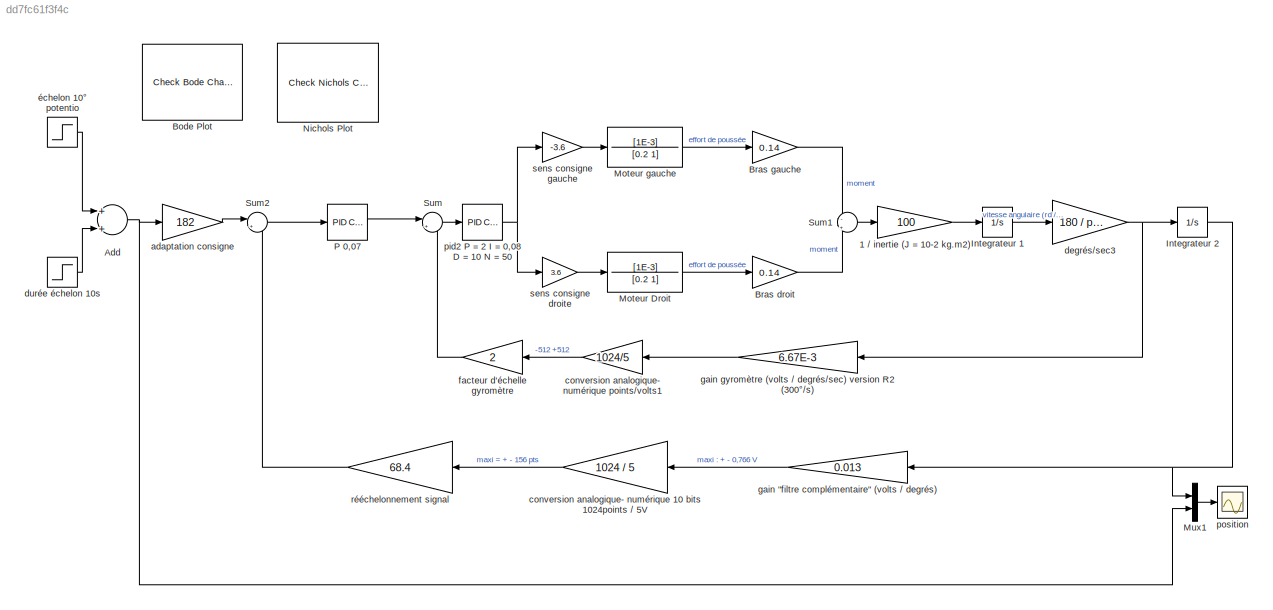
MODEL slx_dd7fc61f3f4c
KIND model
BLOCK [Gain] 1 // inertie (J = 10-2 kg.m2)
  Gain = 100
  OutDataTypeStr = Inherit: Inherit via internal rule
  ParamDataTypeStr = Inherit: Inherit via internal rule
  SaturateOnIntegerOverflow = off
BLOCK [Sum] Add
  InputSameDT = off
  OutDataTypeStr = Inherit: Inherit via internal rule
  Ports = [2, 1]
  SaturateOnIntegerOverflow = off
BLOCK [Reference] Bode Plot  REF=slctrlblks/Model Verification/Check Bode 
Characteristics
  EnableLowerBound = off
  EnableUpperBound = off
  FrequencyUnits = rad/s
  InstantiateOnLoad = on
  LaunchViewOnOpen = on
  LinearizationIOs = {'/Sum2', 1, 'in', 'on', '';'/rééchelonnement signal', 1, 'out', 'on', ''}
  LinearizeAt = SnapshotTimes
  LowerBoundFrequencies = []
  LowerBoundMagnitudes = []
  MagnitudeUnits = dB
  OpenViewOnLoad = on
  PhaseUnits = deg
  Ports = []
  PreWarpFreq = 10
  RateConversionMethod = zoh
  SampleTime = auto
  SaveName = sys
  SaveToWorkspace = off
  SnapshotTimes = [0]
  SourceBlock = slctrlblks/Model Verification/Check Bode \nCharacteristics
  SourceType = Checks_Bode
  TimeUnits = seconds
  TriggerType = rising
  UpperBoundFrequencies = []
  UpperBoundMagnitudes = []
  UseBusSignalLabels = off
  UseExactDelayModel = off
  UseFullBlockNameLabels = off
  ViewDlgPos = [1323 39 510 390]
  ZeroCross = on
  enabled = on
  export = off
  stopWhenAssertionFail = off
BLOCK [Gain] Bras droit
  Gain = 0.14
  OutDataTypeStr = Inherit: Inherit via internal rule
  ParamDataTypeStr = Inherit: Inherit via internal rule
  SaturateOnIntegerOverflow = off
BLOCK [Gain] Bras gauche
  Gain = 0.14
  OutDataTypeStr = Inherit: Inherit via internal rule
  ParamDataTypeStr = Inherit: Inherit via internal rule
  SaturateOnIntegerOverflow = off
BLOCK [Integrator] Integrateur 1
  Ports = [1, 1]
BLOCK [Integrator] Integrateur 2
  Ports = [1, 1]
BLOCK [TransferFcn] Moteur Droit
  Denominator = [0.2 1]
  Numerator = [1E-3]
BLOCK [TransferFcn] Moteur gauche
  Denominator = [0.2 1]
  Numerator = [1E-3]
BLOCK [Mux] Mux1
  DisplayOption = bar
  Inputs = 2
  Ports = [2, 1]
BLOCK [Reference] Nichols Plot  REF=slctrlblks/Model Verification/Check Nichols
Characteristics
  CLPeakGain = []
  EnableCLPeakGain = off
  EnableGainPhaseBound = off
  EnableMargins = off
  FeedbackSign = -1
  FrequencyUnits = rad/s
  GainMargin = []
  GainPhaseBoundType = {'upper'}
  InstantiateOnLoad = on
  LaunchViewOnOpen = on
  LinearizationIOs = {'/Sum2', 1, 'in', 'on', '';'/rééchelonnement signal', 1, 'out', 'on', ''}
  LinearizeAt = SnapshotTimes
  MagnitudeUnits = dB
  OLGains = []
  OLPhases = []
  OpenViewOnLoad = on
  PhaseMargin = []
  PhaseUnits = deg
  Ports = []
  PreWarpFreq = 10
  RateConversionMethod = zoh
  SampleTime = auto
  SaveName = sys
  SaveToWorkspace = off
  SnapshotTimes = [0]
  SourceBlock = slctrlblks/Model Verification/Check Nichols\nCharacteristics
  SourceType = Checks_Nichols
  TimeUnits = seconds
  TriggerType = rising
  UseBusSignalLabels = off
  UseExactDelayModel = off
  UseFullBlockNameLabels = off
  ViewDlgPos = [1322 516 510 390]
  ZeroCross = on
  enabled = on
  export = off
  stopWhenAssertionFail = off
BLOCK [Reference] P 0,07  REF=simulink/Continuous/PID Controller
  AntiWindupMode = none
  Controller = P
  D = 0.0013
  DOutDataTypeStr = Inherit: Inherit via internal rule
  DOutMax = []
  DOutMin = []
  DParamDataTypeStr = Inherit: Inherit via internal rule
  DParamMax = []
  DParamMin = []
  ExternalReset = none
  FilterContinuousStateAttributes = ''
  FilterMethod = Forward Euler
  FilterOutDataTypeStr = Inherit: Inherit via internal rule
  FilterOutMax = []
  FilterOutMin = []
  FilterRTWStateStorageClass = Auto
  FilterStateMustResolveToSignalObject = off
  Form = Parallel
  I = 5
  IOutDataTypeStr = Inherit: Inherit via internal rule
  IOutMax = []
  IOutMin = []
  IParamDataTypeStr = Inherit: Inherit via internal rule
  IParamMax = []
  IParamMin = []
  IgnoreLimit = off
  InitialConditionForFilter = 0
  InitialConditionForIntegrator = 0
  InitialConditionSource = internal
  IntegratorContinuousStateAttributes = ''
  IntegratorMethod = Forward Euler
  IntegratorOutDataTypeStr = Inherit: Inherit via internal rule
  IntegratorOutMax = []
  IntegratorOutMin = []
  IntegratorRTWStateStorageClass = Auto
  IntegratorStateMustResolveToSignalObject = off
  Kb = 1
  KbOutDataTypeStr = Inherit: Inherit via internal rule
  KbOutMax = []
  KbOutMin = []
  KbParamDataTypeStr = Inherit: Inherit via internal rule
  KbParamMax = []
  KbParamMin = []
  Kt = 1
  KtOutDataTypeStr = Inherit: Inherit via internal rule
  KtOutMax = []
  KtOutMin = []
  KtParamDataTypeStr = Inherit: Inherit via internal rule
  KtParamMax = []
  KtParamMin = []
  LimitOutput = off
  LinearizeAsGain = off
  LockScale = off
  LowerSaturationLimit = -inf
  N = 330
  NOutDataTypeStr = Inherit: Inherit via internal rule
  NOutMax = []
  NOutMin = []
  NParamDataTypeStr = Inherit: Inherit via internal rule
  NParamMax = []
  NParamMin = []
  P = 0.07
  POutDataTypeStr = Inherit: Inherit via internal rule
  POutMax = []
  POutMin = []
  PParamDataTypeStr = Inherit: Inherit via internal rule
  PParamMax = []
  PParamMin = []
  Ports = [1, 1]
  RndMeth = Floor
  SampleTime = 1
  SaturateOnIntegerOverflow = off
  SaturationOutDataTypeStr = Inherit: Same as input
  SaturationOutMax = []
  SaturationOutMin = []
  SourceBlock = simulink/Continuous/PID Controller
  SourceType = PID 1dof
  SumAccumDataTypeStr = Inherit: Inherit via internal rule
  SumDAccumDataTypeStr = Inherit: Inherit via internal rule
  SumDOutDataTypeStr = Inherit: Inherit via internal rule
  SumDOutMax = []
  SumDOutMin = []
  SumI1AccumDataTypeStr = Inherit: Inherit via internal rule
  SumI1OutDataTypeStr = Inherit: Inherit via internal rule
  SumI1OutMax = []
  SumI1OutMin = []
  SumI2AccumDataTypeStr = Inherit: Inherit via internal rule
  SumI2OutDataTypeStr = Inherit: Inherit via internal rule
  SumI2OutMax = []
  SumI2OutMin = []
  SumI3AccumDataTypeStr = Inherit: Inherit via internal rule
  SumI3OutDataTypeStr = Inherit: Inherit via internal rule
  SumI3OutMax = []
  SumI3OutMin = []
  SumOutDataTypeStr = Inherit: Inherit via internal rule
  SumOutMax = []
  SumOutMin = []
  TimeDomain = Continuous-time
  TrackingMode = off
  UpperSaturationLimit = inf
  ZeroCross = on
BLOCK [Sum] Sum
  IconShape = round
  InputSameDT = off
  Inputs = |+-
  OutDataTypeStr = Inherit: Inherit via internal rule
  Ports = [2, 1]
  SaturateOnIntegerOverflow = off
BLOCK [Sum] Sum1
  IconShape = round
  InputSameDT = off
  Inputs = -|+
  OutDataTypeStr = Inherit: Inherit via internal rule
  Ports = [2, 1]
  SaturateOnIntegerOverflow = off
BLOCK [Sum] Sum2
  IconShape = round
  InputSameDT = off
  Inputs = |+-
  OutDataTypeStr = Inherit: Inherit via internal rule
  Ports = [2, 1]
  SaturateOnIntegerOverflow = off
BLOCK [Gain] adaptation consigne
  Gain = 182
  OutDataTypeStr = Inherit: Inherit via internal rule
  ParamDataTypeStr = Inherit: Inherit via internal rule
  SaturateOnIntegerOverflow = off
BLOCK [Gain] conversion analogique- numérique 10 bits 1024points // 5V
  Gain = 1024 / 5
  OutDataTypeStr = Inherit: Inherit via internal rule
  ParamDataTypeStr = Inherit: Inherit via internal rule
  SaturateOnIntegerOverflow = off
BLOCK [Gain] conversion analogique- numérique points//volts1
  Gain = 1024/5
  OutDataTypeStr = Inherit: Inherit via internal rule
  ParamDataTypeStr = Inherit: Inherit via internal rule
  SaturateOnIntegerOverflow = off
BLOCK [Gain] degrés//sec3
  Gain = 180 / pi()
  OutDataTypeStr = Inherit: Inherit via internal rule
  ParamDataTypeStr = Inherit: Inherit via internal rule
  SaturateOnIntegerOverflow = off
BLOCK [Step] durée échelon 10s
  After = -10
  SampleTime = 0
  Time = 10
BLOCK [Gain] facteur d'échelle gyromètre
  Gain = 2
  OutDataTypeStr = Inherit: Inherit via internal rule
  ParamDataTypeStr = Inherit: Inherit via internal rule
  SaturateOnIntegerOverflow = off
BLOCK [Gain] gain "filtre complémentaire" (volts // degrés)
  Gain = 0.013
  OutDataTypeStr = Inherit: Inherit via internal rule
  ParamDataTypeStr = Inherit: Inherit via internal rule
  SaturateOnIntegerOverflow = off
BLOCK [Gain] gain gyromètre (volts // degrés//sec) version R2 (300°//s)
  Gain = 6.67E-3
  OutDataTypeStr = Inherit: Inherit via internal rule
  ParamDataTypeStr = Inherit: Inherit via internal rule
  SaturateOnIntegerOverflow = off
BLOCK [Reference] pid2 P = 2 I = 0,08 D = 10 N = 50   REF=simulink/Continuous/PID Controller
  AntiWindupMode = none
  Controller = PID
  D = 10/50
  DOutDataTypeStr = Inherit: Inherit via internal rule
  DOutMax = []
  DOutMin = []
  DParamDataTypeStr = Inherit: Inherit via internal rule
  DParamMax = []
  DParamMin = []
  ExternalReset = none
  FilterContinuousStateAttributes = ''
  FilterMethod = Forward Euler
  FilterOutDataTypeStr = Inherit: Inherit via internal rule
  FilterOutMax = []
  FilterOutMin = []
  FilterRTWStateStorageClass = Auto
  FilterStateMustResolveToSignalObject = off
  Form = Parallel
  I = 0.08
  IOutDataTypeStr = Inherit: Inherit via internal rule
  IOutMax = []
  IOutMin = []
  IParamDataTypeStr = Inherit: Inherit via internal rule
  IParamMax = []
  IParamMin = []
  IgnoreLimit = off
  InitialConditionForFilter = 0
  InitialConditionForIntegrator = 0
  InitialConditionSource = internal
  IntegratorContinuousStateAttributes = ''
  IntegratorMethod = Forward Euler
  IntegratorOutDataTypeStr = Inherit: Inherit via internal rule
  IntegratorOutMax = []
  IntegratorOutMin = []
  IntegratorRTWStateStorageClass = Auto
  IntegratorStateMustResolveToSignalObject = off
  Kb = 1
  KbOutDataTypeStr = Inherit: Inherit via internal rule
  KbOutMax = []
  KbOutMin = []
  KbParamDataTypeStr = Inherit: Inherit via internal rule
  KbParamMax = []
  KbParamMin = []
  Kt = 1
  KtOutDataTypeStr = Inherit: Inherit via internal rule
  KtOutMax = []
  KtOutMin = []
  KtParamDataTypeStr = Inherit: Inherit via internal rule
  KtParamMax = []
  KtParamMin = []
  LimitOutput = off
  LinearizeAsGain = off
  LockScale = off
  LowerSaturationLimit = -inf
  N = 50
  NOutDataTypeStr = Inherit: Inherit via internal rule
  NOutMax = []
  NOutMin = []
  NParamDataTypeStr = Inherit: Inherit via internal rule
  NParamMax = []
  NParamMin = []
  P = 2
  POutDataTypeStr = Inherit: Inherit via internal rule
  POutMax = []
  POutMin = []
  PParamDataTypeStr = Inherit: Inherit via internal rule
  PParamMax = []
  PParamMin = []
  Ports = [1, 1]
  RndMeth = Floor
  SampleTime = 1
  SaturateOnIntegerOverflow = off
  SaturationOutDataTypeStr = Inherit: Same as input
  SaturationOutMax = []
  SaturationOutMin = []
  SourceBlock = simulink/Continuous/PID Controller
  SourceType = PID 1dof
  SumAccumDataTypeStr = Inherit: Inherit via internal rule
  SumDAccumDataTypeStr = Inherit: Inherit via internal rule
  SumDOutDataTypeStr = Inherit: Inherit via internal rule
  SumDOutMax = []
  SumDOutMin = []
  SumI1AccumDataTypeStr = Inherit: Inherit via internal rule
  SumI1OutDataTypeStr = Inherit: Inherit via internal rule
  SumI1OutMax = []
  SumI1OutMin = []
  SumI2AccumDataTypeStr = Inherit: Inherit via internal rule
  SumI2OutDataTypeStr = Inherit: Inherit via internal rule
  SumI2OutMax = []
  SumI2OutMin = []
  SumI3AccumDataTypeStr = Inherit: Inherit via internal rule
  SumI3OutDataTypeStr = Inherit: Inherit via internal rule
  SumI3OutMax = []
  SumI3OutMin = []
  SumOutDataTypeStr = Inherit: Inherit via internal rule
  SumOutMax = []
  SumOutMin = []
  TimeDomain = Continuous-time
  TrackingMode = off
  UpperSaturationLimit = inf
  ZeroCross = on
BLOCK [Scope] position
  DataFormat = StructureWithTime
  Floating = off
  LimitDataPoints = off
  NumInputPorts = 1
  Ports = [1]
  SampleTime = 0
  SaveName = ScopeData1
  ShowLegends = off
  YMax = 10
  YMin = -1
BLOCK [Gain] rééchelonnement signal
  Gain = 68.4
  OutDataTypeStr = Inherit: Inherit via internal rule
  ParamDataTypeStr = Inherit: Inherit via internal rule
  SaturateOnIntegerOverflow = off
BLOCK [Gain] sens consigne droite
  Gain = 3.6
  OutDataTypeStr = Inherit: Inherit via internal rule
  ParamDataTypeStr = Inherit: Inherit via internal rule
  SaturateOnIntegerOverflow = off
BLOCK [Gain] sens consigne gauche
  Gain = -3.6
  OutDataTypeStr = Inherit: Inherit via internal rule
  ParamDataTypeStr = Inherit: Inherit via internal rule
  SaturateOnIntegerOverflow = off
BLOCK [Step] échelon 10° potentio
  After = 10
  SampleTime = 0
  Time = 0
LINE 1 // inertie (J = 10-2 kg.m2):1 -> Integrateur 1:1
NET Add:1 -> Mux1:2, adaptation consigne:1
LINE Bras droit:1 -> Sum1:2
LINE Bras gauche:1 -> Sum1:1
LINE Integrateur 1:1 -> degrés//sec3:1
NET Integrateur 2:1 -> Mux1:1, gain "filtre complémentaire" (volts // degrés):1
LINE Moteur Droit:1 -> Bras droit:1
LINE Moteur gauche:1 -> Bras gauche:1
LINE Mux1:1 -> position:1
LINE P 0,07:1 -> Sum:1
LINE Sum1:1 -> 1 // inertie (J = 10-2 kg.m2):1
LINE Sum2:1 -> P 0,07:1
LINE Sum:1 -> pid2 P = 2 I = 0,08 D = 10 N = 50 :1
LINE adaptation consigne:1 -> Sum2:1
LINE conversion analogique- numérique 10 bits 1024points // 5V:1 -> rééchelonnement signal:1
LINE conversion analogique- numérique points//volts1:1 -> facteur d'échelle gyromètre:1
NET degrés//sec3:1 -> Integrateur 2:1, gain gyromètre (volts // degrés//sec) version R2 (300°//s):1
LINE durée échelon 10s:1 -> Add:2
LINE facteur d'échelle gyromètre:1 -> Sum:2
LINE gain "filtre complémentaire" (volts // degrés):1 -> conversion analogique- numérique 10 bits 1024points // 5V:1
LINE gain gyromètre (volts // degrés//sec) version R2 (300°//s):1 -> conversion analogique- numérique points//volts1:1
NET pid2 P = 2 I = 0,08 D = 10 N = 50 :1 -> sens consigne droite:1, sens consigne gauche:1
LINE rééchelonnement signal:1 -> Sum2:2
LINE sens consigne droite:1 -> Moteur Droit:1
LINE sens consigne gauche:1 -> Moteur gauche:1
LINE échelon 10° potentio:1 -> Add:1
note: NET lines group one-source signal fan-out (src -> all destinations, sorted); 1:1 wires keep LINE
